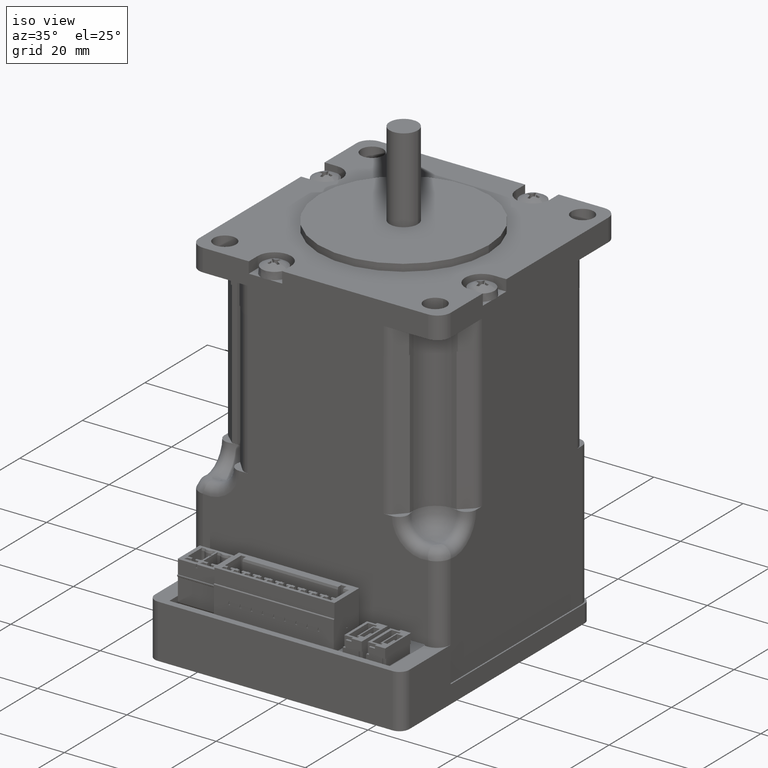
[diagram: clean part render]
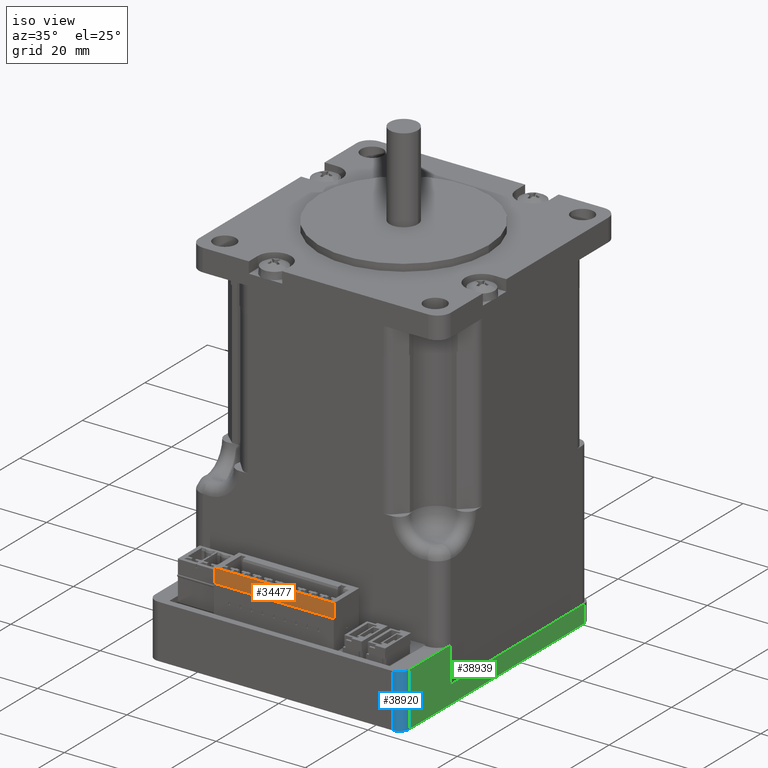
[diagram: same view with three faces highlighted in distinct colors, each labeled with its STEP entity id]
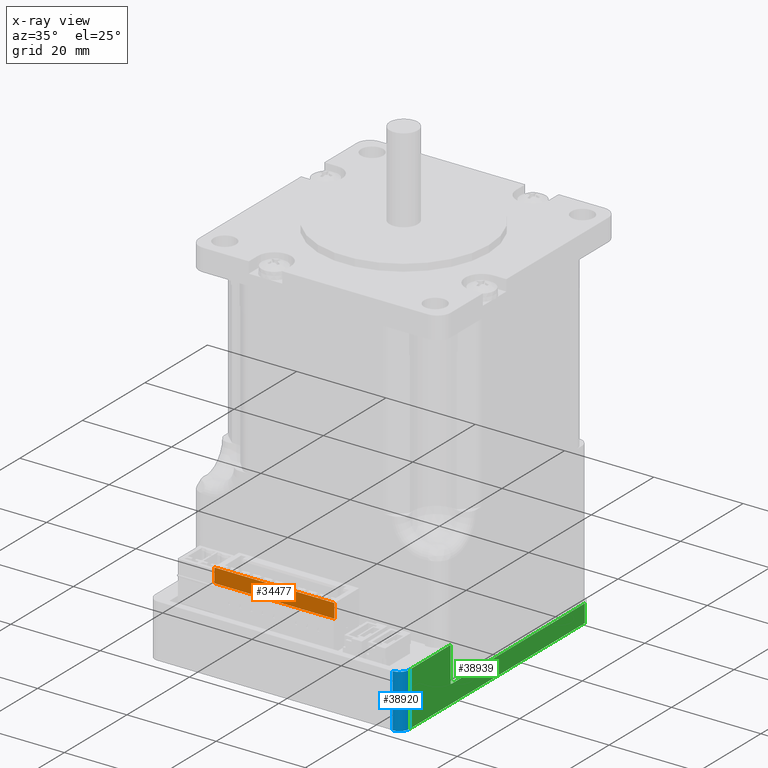
[diagram: x-ray of the same camera — body ghosted, the three highlighted faces saturated]
A machine part, iso view with three faces highlighted in distinct colors.
The next image is the same camera in x-ray (body ghosted, the three faces saturated) — at least one of them is partly hidden behind the body in this view.
Their STEP definitions:

[orange] entity #34477 — the highlighted planar face has unit normal (0, 1, 0).
#24919=CARTESIAN_POINT('',(11.550000000000903,-38.651401807938583,-50.299999999997915));
#24920=VERTEX_POINT('',#24919);
#24928=CARTESIAN_POINT('',(-15.349999999999078,-38.651401807938583,-50.299999999997915));
#24929=VERTEX_POINT('',#24928);
#24930=CARTESIAN_POINT('',(-15.349999999999078,-38.651401807938583,-50.299999999997915));
#24931=DIRECTION('',(1.0,0.0,0.0));
#24932=VECTOR('',#24931,26.899999999999981);
#24933=LINE('',#24930,#24932);
#24934=EDGE_CURVE('',#24929,#24920,#24933,.T.);
#33580=CARTESIAN_POINT('',(-15.349999999999078,-38.651401807938583,-47.09999999999787));
#33581=VERTEX_POINT('',#33580);
#33582=CARTESIAN_POINT('',(-15.349999999999078,-38.651401807938583,-50.299999999997915));
#33583=DIRECTION('',(0.0,0.0,1.0));
#33584=VECTOR('',#33583,3.200000000000053);
#33585=LINE('',#33582,#33584);
#33586=EDGE_CURVE('',#24929,#33581,#33585,.T.);
#34454=CARTESIAN_POINT('',(-18.540002399999093,-38.651401807938583,-46.690031393924869));
#34455=DIRECTION('',(0.0,1.0,0.0));
#34456=DIRECTION('',(-1.0,0.0,0.0));
#34457=AXIS2_PLACEMENT_3D('',#34454,#34455,#34456);
#34458=PLANE('',#34457);
#34459=ORIENTED_EDGE('',*,*,#33586,.F.);
#34460=ORIENTED_EDGE('',*,*,#24934,.T.);
#34461=CARTESIAN_POINT('',(11.550000000000903,-38.651401807938583,-47.099999999997863));
#34462=VERTEX_POINT('',#34461);
#34463=CARTESIAN_POINT('',(11.550000000000903,-38.651401807938583,-50.299999999997915));
#34464=DIRECTION('',(0.0,0.0,1.0));
#34465=VECTOR('',#34464,3.200000000000053);
#34466=LINE('',#34463,#34465);
#34467=EDGE_CURVE('',#24920,#34462,#34466,.T.);
#34468=ORIENTED_EDGE('',*,*,#34467,.T.);
#34469=CARTESIAN_POINT('',(-15.349999999999078,-38.651401807938583,-47.09999999999787));
#34470=DIRECTION('',(1.0,0.0,0.0));
#34471=VECTOR('',#34470,26.899999999999981);
#34472=LINE('',#34469,#34471);
#34473=EDGE_CURVE('',#33581,#34462,#34472,.T.);
#34474=ORIENTED_EDGE('',*,*,#34473,.F.);
#34475=EDGE_LOOP('',(#34459,#34460,#34468,#34474));
#34476=FACE_OUTER_BOUND('',#34475,.T.);
#34477=ADVANCED_FACE('',(#34476),#34458,.F.);

[blue] entity #38920 — the highlighted cylindrical surface (edge-blend (fillet) strip) has radius 2.2 mm, axis along (-0, 0, 1).
#37512=CARTESIAN_POINT('',(28.499999999999982,-38.90000000000002,-68.0));
#37513=VERTEX_POINT('',#37512);
#37520=CARTESIAN_POINT('',(26.300000000000004,-41.100000000000009,-68.0));
#37521=VERTEX_POINT('',#37520);
#37522=CARTESIAN_POINT('',(26.300000000000004,-38.90000000000002,-68.0));
#37523=DIRECTION('',(0.0,0.0,-1.0));
#37524=DIRECTION('',(1.0,0.0,0.0));
#37525=AXIS2_PLACEMENT_3D('',#37522,#37523,#37524);
#37526=CIRCLE('',#37525,2.2);
#37527=EDGE_CURVE('',#37513,#37521,#37526,.T.);
#38603=CARTESIAN_POINT('',(26.300000000000004,-41.100000000000009,-56.000000000000007));
#38604=VERTEX_POINT('',#38603);
#38611=CARTESIAN_POINT('',(28.499999999999993,-38.90000000000002,-56.000000000000007));
#38612=VERTEX_POINT('',#38611);
#38613=CARTESIAN_POINT('',(26.300000000000004,-38.90000000000002,-56.000000000000007));
#38614=DIRECTION('',(0.0,0.0,1.0));
#38615=DIRECTION('',(0.0,-1.0,0.0));
#38616=AXIS2_PLACEMENT_3D('',#38613,#38614,#38615);
#38617=CIRCLE('',#38616,2.2);
#38618=EDGE_CURVE('',#38604,#38612,#38617,.T.);
#38899=CARTESIAN_POINT('',(26.300000000000004,-38.90000000000002,-66.0));
#38900=DIRECTION('',(-2.234079E-032,1.232595E-032,1.0));
#38901=DIRECTION('',(0.707106781186549,-0.707106781186546,2.451309E-032));
#38902=AXIS2_PLACEMENT_3D('',#38899,#38900,#38901);
#38903=CYLINDRICAL_SURFACE('',#38902,2.200000000000001);
#38904=CARTESIAN_POINT('',(26.300000000000004,-41.100000000000009,-56.000000000000007));
#38905=DIRECTION('',(0.0,0.0,-1.0));
#38906=VECTOR('',#38905,11.999999999999993);
#38907=LINE('',#38904,#38906);
#38908=EDGE_CURVE('',#38604,#37521,#38907,.T.);
#38909=ORIENTED_EDGE('',*,*,#38908,.T.);
#38910=ORIENTED_EDGE('',*,*,#37527,.F.);
#38911=CARTESIAN_POINT('',(28.499999999999982,-38.90000000000002,-56.000000000000007));
#38912=DIRECTION('',(0.0,0.0,-1.0));
#38913=VECTOR('',#38912,11.999999999999993);
#38914=LINE('',#38911,#38913);
#38915=EDGE_CURVE('',#38612,#37513,#38914,.T.);
#38916=ORIENTED_EDGE('',*,*,#38915,.F.);
#38917=ORIENTED_EDGE('',*,*,#38618,.F.);
#38918=EDGE_LOOP('',(#38909,#38910,#38916,#38917));
#38919=FACE_OUTER_BOUND('',#38918,.T.);
#38920=ADVANCED_FACE('',(#38919),#38903,.T.);

[green] entity #38939 — the highlighted planar face has unit normal (1, 0, 0).
#37503=CARTESIAN_POINT('',(28.500000000000007,17.150000000000013,-68.0));
#37504=VERTEX_POINT('',#37503);
#37512=CARTESIAN_POINT('',(28.499999999999982,-38.90000000000002,-68.0));
#37513=VERTEX_POINT('',#37512);
#37514=CARTESIAN_POINT('',(28.500000000000007,17.150000000000013,-68.0));
#37515=DIRECTION('',(0.0,-1.0,0.0));
#37516=VECTOR('',#37515,56.05000000000004);
#37517=LINE('',#37514,#37516);
#37518=EDGE_CURVE('',#37504,#37513,#37517,.T.);
#38239=CARTESIAN_POINT('',(28.499999999999993,-25.700000000000017,-64.0));
#38240=VERTEX_POINT('',#38239);
#38248=CARTESIAN_POINT('',(28.500000000000007,17.150000000000013,-64.0));
#38249=VERTEX_POINT('',#38248);
#38250=CARTESIAN_POINT('',(28.500000000000007,17.150000000000013,-64.0));
#38251=DIRECTION('',(0.0,-1.0,0.0));
#38252=VECTOR('',#38251,42.85000000000003);
#38253=LINE('',#38250,#38252);
#38254=EDGE_CURVE('',#38249,#38240,#38253,.T.);
#38511=CARTESIAN_POINT('',(28.499999999999993,-25.700000000000017,-56.000000000000007));
#38512=VERTEX_POINT('',#38511);
#38520=CARTESIAN_POINT('',(28.499999999999993,-25.700000000000017,-64.0));
#38521=DIRECTION('',(0.0,0.0,1.0));
#38522=VECTOR('',#38521,8.0);
#38523=LINE('',#38520,#38522);
#38524=EDGE_CURVE('',#38240,#38512,#38523,.T.);
#38611=CARTESIAN_POINT('',(28.499999999999993,-38.90000000000002,-56.000000000000007));
#38612=VERTEX_POINT('',#38611);
#38620=CARTESIAN_POINT('',(28.499999999999993,-38.90000000000002,-56.000000000000007));
#38621=DIRECTION('',(0.0,1.0,0.0));
#38622=VECTOR('',#38621,13.200000000000003);
#38623=LINE('',#38620,#38622);
#38624=EDGE_CURVE('',#38612,#38512,#38623,.T.);
#38911=CARTESIAN_POINT('',(28.499999999999982,-38.90000000000002,-56.000000000000007));
#38912=DIRECTION('',(0.0,0.0,-1.0));
#38913=VECTOR('',#38912,11.999999999999993);
#38914=LINE('',#38911,#38913);
#38915=EDGE_CURVE('',#38612,#37513,#38914,.T.);
#38921=CARTESIAN_POINT('',(28.500000000000007,17.150000000000013,-66.0));
#38922=DIRECTION('',(1.0,0.0,0.0));
#38923=DIRECTION('',(0.0,0.0,1.0));
#38924=AXIS2_PLACEMENT_3D('',#38921,#38922,#38923);
#38925=PLANE('',#38924);
#38926=ORIENTED_EDGE('',*,*,#38915,.T.);
#38927=ORIENTED_EDGE('',*,*,#37518,.F.);
#38928=CARTESIAN_POINT('',(28.500000000000007,17.150000000000013,-68.0));
#38929=DIRECTION('',(0.0,0.0,1.0));
#38930=VECTOR('',#38929,4.0);
#38931=LINE('',#38928,#38930);
#38932=EDGE_CURVE('',#37504,#38249,#38931,.T.);
#38933=ORIENTED_EDGE('',*,*,#38932,.T.);
#38934=ORIENTED_EDGE('',*,*,#38254,.T.);
#38935=ORIENTED_EDGE('',*,*,#38524,.T.);
#38936=ORIENTED_EDGE('',*,*,#38624,.F.);
#38937=EDGE_LOOP('',(#38926,#38927,#38933,#38934,#38935,#38936));
#38938=FACE_OUTER_BOUND('',#38937,.T.);
#38939=ADVANCED_FACE('',(#38938),#38925,.T.);